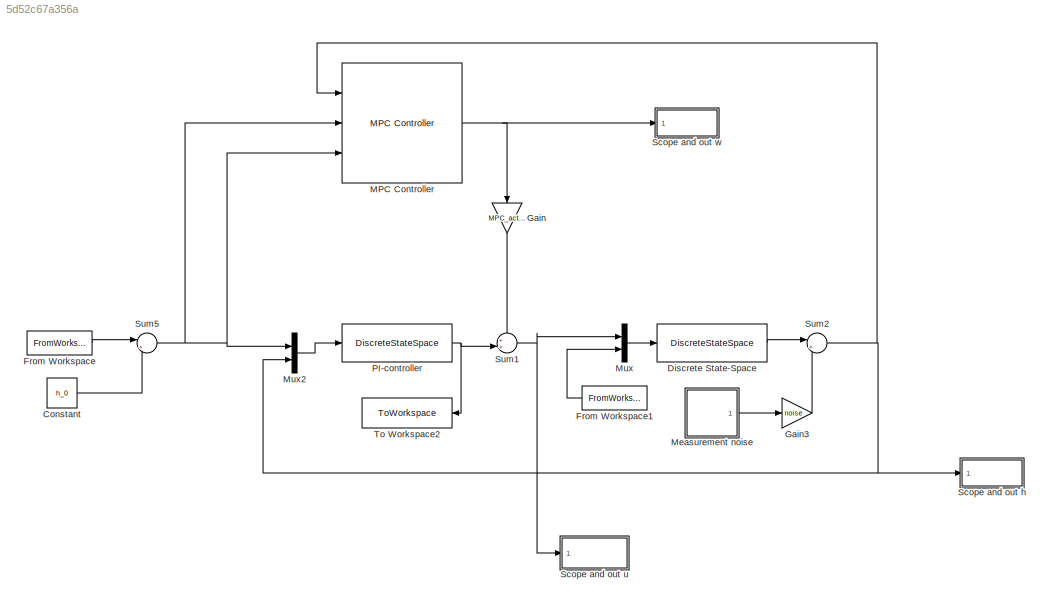
MODEL slx_5d52c67a356a
KIND model
CONFIG AbsTol = auto
CONFIG EnableMultiTasking = off
CONFIG FixedStep = auto
CONFIG MaxStep = auto
CONFIG MinStep = auto
CONFIG RelTol = 1e-3
CONFIG SampleTimeConstraint = Unconstrained
CONFIG SolverName = VariableStepAuto
CONFIG StartTime = 0.0
CONFIG StopTime = 10.0
BLOCK [Constant] Constant
  Value = h_0
BLOCK [DiscreteStateSpace] Discrete State-Space
  A = sys_pd.A
  B = sys_pd.B
  C = sys_pd.C
  D = sys_pd.D
  InitialCondition = x_0
  SampleTime = dt
BLOCK [FromWorkspace] From Workspace
  SampleTime = dt
  VariableName = ref
BLOCK [FromWorkspace] From Workspace1
  SampleTime = dt
  VariableName = inflow
BLOCK [Gain] Gain
  Gain = MPC_active
  NameLocation = left
BLOCK [Gain] Gain3
  Gain = noise
BLOCK [Reference] MPC Controller  REF=mpclib/MPC Controller  (lib defined in mdl_ae329e0e0455)
  Ports = [3, 1]
  SCDEnableBlockLinearizationSpecification = on
  SourceBlock = mpclib/MPC Controller
  SourceProductBaseCode = MP
  SourceType = MPC
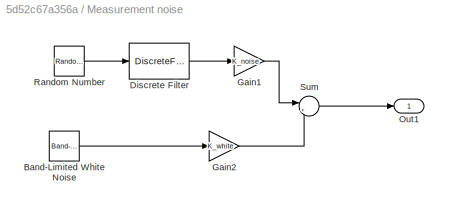
BLOCK [SubSystem] Measurement noise
  Ports = [0, 1]
  RequestExecContextInheritance = off
BLOCK [Reference] Measurement noise/Band-Limited White Noise  REF=simulink/Sources/Band-Limited
White Noise
  Ports = [0, 1]
  SourceBlock = simulink/Sources/Band-Limited\nWhite Noise
  SourceProductBaseCode = SL
  SourceType = Band-Limited White Noise.
BLOCK [DiscreteFilter] Measurement noise/Discrete Filter
  Denominator = dist.denom
  InputPortMap = u0
  Ports = [1, 1]
  SampleTime = dt
BLOCK [Gain] Measurement noise/Gain1
  Gain = K_noise
BLOCK [Gain] Measurement noise/Gain2
  Gain = K_white
BLOCK [Outport] Measurement noise/Out1
BLOCK [RandomNumber] Measurement noise/Random Number
  SampleTime = dt
  Seed = 1
BLOCK [Sum] Measurement noise/Sum
  Inputs = |++
  Ports = [2, 1]
BLOCK [Mux] Mux
  DisplayOption = bar
  Inputs = 2
  Ports = [2, 1]
BLOCK [Mux] Mux2
  DisplayOption = bar
  Inputs = 2
  Ports = [2, 1]
BLOCK [DiscreteStateSpace] PI-controller
  A = sys_kd.A
  B = sys_kd.B
  C = sys_kd.C
  D = sys_kd.D
  InitialCondition = I_0
  SampleTime = dt
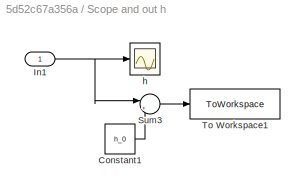
BLOCK [SubSystem] Scope and out h
  Ports = [1]
  RequestExecContextInheritance = off
BLOCK [Constant] Scope and out h/Constant1
  Value = h_0
BLOCK [Inport] Scope and out h/In1
BLOCK [Sum] Scope and out h/Sum3
  Inputs = |++
  Ports = [2, 1]
BLOCK [ToWorkspace] Scope and out h/To Workspace1
  FixptAsFi = on
  MaxDataPoints = inf
  Ports = [1]
  SampleTime = dt
  VariableName = h
BLOCK [Scope] Scope and out h/h
  Floating = off
  NumInputPorts = 1
  Ports = [1]
  ScopeSpecificationString = Simulink.scopes.TimeScopeBlockCfg('CurrentConfiguration', extmgr.ConfigurationSet(extmgr.Configuration('Core','General UI',true),extmgr.Configuration('Core','Source UI',true),extmgr.Configuration('Sources','WiredSimulink',true),extmgr.Configuration('Visuals','Time Domain',true,'SerializedDisplays',{struct('MinYLimReal','-40.24093','MaxYLimReal','5.89344','YLabelReal','','MinYLimMag','0.00000','Max...<+1679ch>
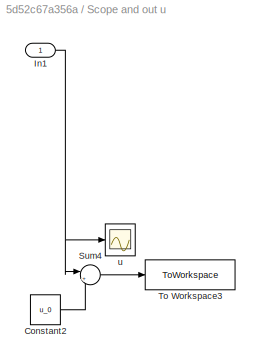
BLOCK [SubSystem] Scope and out u
  Ports = [1]
  RequestExecContextInheritance = off
BLOCK [Constant] Scope and out u/Constant2
  Value = u_0
BLOCK [Inport] Scope and out u/In1
BLOCK [Sum] Scope and out u/Sum4
  Inputs = |++
  Ports = [2, 1]
BLOCK [ToWorkspace] Scope and out u/To Workspace3
  FixptAsFi = on
  MaxDataPoints = inf
  Ports = [1]
  SampleTime = dt
  VariableName = u
BLOCK [Scope] Scope and out u/u
  Floating = off
  NumInputPorts = 1
  Ports = [1]
  ScopeSpecificationString = Simulink.scopes.TimeScopeBlockCfg('CurrentConfiguration', extmgr.ConfigurationSet(extmgr.Configuration('Core','General UI',true),extmgr.Configuration('Core','Source UI',true),extmgr.Configuration('Sources','WiredSimulink',true,'DataLoggingVariableName','ScopeData1'),extmgr.Configuration('Visuals','Time Domain',true,'SerializedDisplays',{struct('MinYLimReal','-42.9887','MaxYLimReal','6.91602','YLab...<+1392ch>
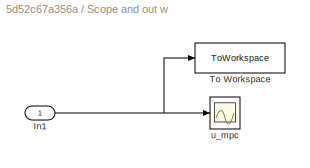
BLOCK [SubSystem] Scope and out w
  Ports = [1]
  RequestExecContextInheritance = off
BLOCK [Inport] Scope and out w/In1
BLOCK [ToWorkspace] Scope and out w/To Workspace
  FixptAsFi = on
  MaxDataPoints = inf
  Ports = [1]
  SampleTime = dt
  VariableName = w
BLOCK [Scope] Scope and out w/u_mpc
  Floating = off
  NumInputPorts = 1
  Ports = [1]
  ScopeSpecificationString = Simulink.scopes.TimeScopeBlockCfg('CurrentConfiguration', extmgr.ConfigurationSet(extmgr.Configuration('Core','General UI',true),extmgr.Configuration('Core','Source UI',true),extmgr.Configuration('Sources','WiredSimulink',true,'DataLoggingVariableName','ScopeData1'),extmgr.Configuration('Visuals','Time Domain',true,'SerializedDisplays',{struct('MinYLimReal','-1.10823','MaxYLimReal','2.37218','YLab...<+1751ch>
BLOCK [Sum] Sum1
  Inputs = ++|
  NameLocation = top
  Ports = [2, 1]
BLOCK [Sum] Sum2
  Inputs = |++
  Ports = [2, 1]
BLOCK [Sum] Sum5
  Inputs = |+-
  Ports = [2, 1]
BLOCK [ToWorkspace] To Workspace2
  FixptAsFi = on
  MaxDataPoints = inf
  Ports = [1]
  SampleTime = dt
  VariableName = v
LINE Constant:1 -> Sum5:2
LINE Discrete State-Space:1 -> Sum2:1
LINE From Workspace1:1 -> Mux:2
LINE From Workspace:1 -> Sum5:1
LINE Gain3:1 -> Sum2:2
LINE Gain:1 -> Sum1:1
NET MPC Controller:1 -> Gain:1, Scope and out w:1
LINE Measurement noise/Band-Limited White Noise:1 -> Measurement noise/Gain2:1
LINE Measurement noise/Discrete Filter:1 -> Measurement noise/Gain1:1
LINE Measurement noise/Gain1:1 -> Measurement noise/Sum:1
LINE Measurement noise/Gain2:1 -> Measurement noise/Sum:2
LINE Measurement noise/Random Number:1 -> Measurement noise/Discrete Filter:1
LINE Measurement noise/Sum:1 -> Measurement noise/Out1:1
LINE Measurement noise:1 -> Gain3:1
LINE Mux2:1 -> PI-controller:1
LINE Mux:1 -> Discrete State-Space:1
NET PI-controller:1 -> Sum1:2, To Workspace2:1
LINE Scope and out h/Constant1:1 -> Scope and out h/Sum3:2
NET Scope and out h/In1:1 -> Scope and out h/Sum3:1, Scope and out h/h:1
LINE Scope and out h/Sum3:1 -> Scope and out h/To Workspace1:1
LINE Scope and out u/Constant2:1 -> Scope and out u/Sum4:2
NET Scope and out u/In1:1 -> Scope and out u/Sum4:1, Scope and out u/u:1
LINE Scope and out u/Sum4:1 -> Scope and out u/To Workspace3:1
NET Scope and out w/In1:1 -> Scope and out w/To Workspace:1, Scope and out w/u_mpc:1
NET Sum1:1 -> Mux:1, Scope and out u:1
NET Sum2:1 -> MPC Controller:1, Mux2:2, Scope and out h:1
NET Sum5:1 -> MPC Controller:2, MPC Controller:3, Mux2:1
note: NET lines group one-source signal fan-out (src -> all destinations, sorted); 1:1 wires keep LINE
